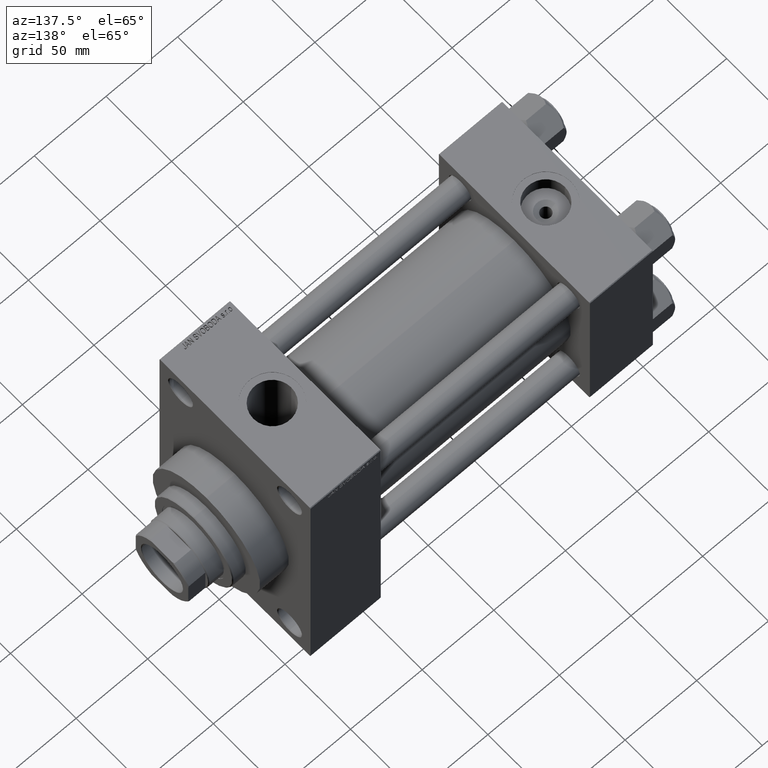
[diagram: clean part render]
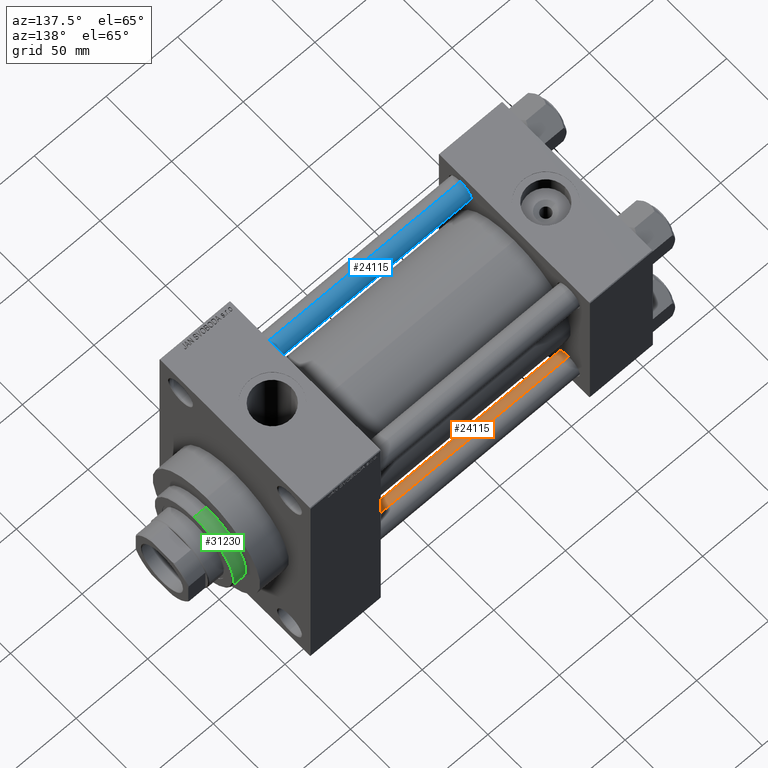
[diagram: same view with three faces highlighted in distinct colors, each labeled with its STEP entity id]
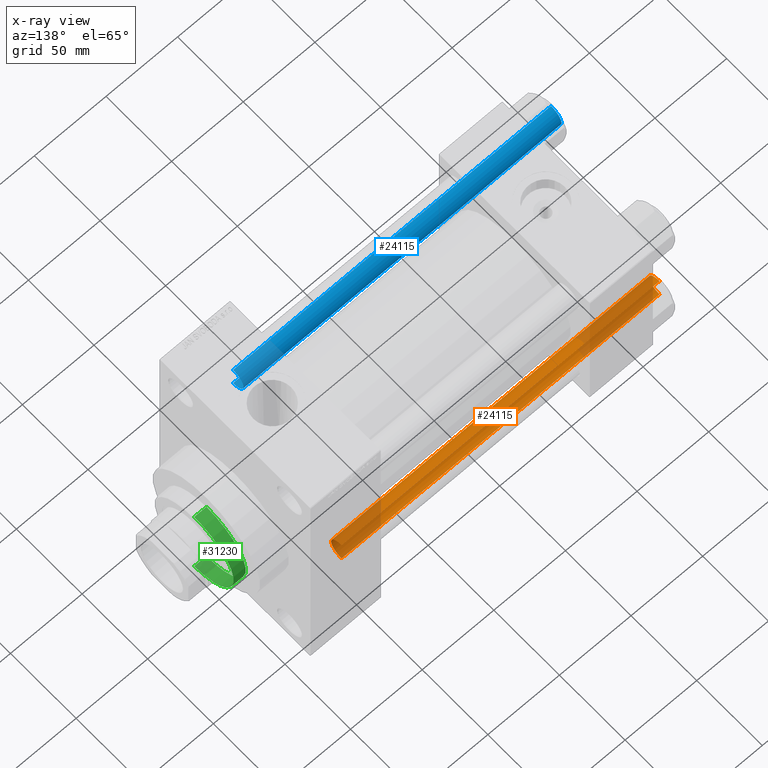
[diagram: x-ray of the same camera — body ghosted, the three highlighted faces saturated]
A machine part, auxiliary view with three faces highlighted in distinct colors.
The next image is the same camera in x-ray (body ghosted, the three faces saturated) — at least one of them is partly hidden behind the body in this view.
Their STEP definitions:

[orange] entity #24115 — the highlighted cylindrical surface (edge-blend (fillet) strip) has radius 8 mm, axis along (-1, -0, 0).
#506 = DIRECTION ( 'NONE',  ( -0.000000000000000000, -0.000000000000000000, 1.000000000000000000 ) ) ;
#1006 = VERTEX_POINT ( 'NONE', #24899 ) ;
#2166 = VECTOR ( 'NONE', #6984, 1000.000000000000000 ) ;
#2215 = DIRECTION ( 'NONE',  ( -0.000000000000000000, -0.000000000000000000, -1.000000000000000000 ) ) ;
#2368 = CIRCLE ( 'NONE', #29429, 8.000000000000000000 ) ;
#2423 = CARTESIAN_POINT ( 'NONE',  ( 8.000000000000000000, 9.797174393178823685E-16, 223.0000000000000000 ) ) ;
#3378 = AXIS2_PLACEMENT_3D ( 'NONE', #47527, #506, #7742 ) ;
#4574 = DIRECTION ( 'NONE',  ( 1.000000000000000000, 0.000000000000000000, 0.000000000000000000 ) ) ;
#6015 = EDGE_LOOP ( 'NONE', ( #27238, #21017, #19392, #26189 ) ) ;
#6984 = DIRECTION ( 'NONE',  ( -0.000000000000000000, -0.000000000000000000, -1.000000000000000000 ) ) ;
#7742 = DIRECTION ( 'NONE',  ( 1.000000000000000000, 0.000000000000000000, 0.000000000000000000 ) ) ;
#9245 = EDGE_CURVE ( 'NONE', #35743, #32979, #2368, .T. ) ;
#9464 = DIRECTION ( 'NONE',  ( -1.000000000000000000, 0.000000000000000000, 0.000000000000000000 ) ) ;
#11299 = CARTESIAN_POINT ( 'NONE',  ( -8.000000000000000000, 0.000000000000000000, 0.5000000000001669775 ) ) ;
#13441 = DIRECTION ( 'NONE',  ( -0.000000000000000000, -0.000000000000000000, -1.000000000000000000 ) ) ;
#13759 = LINE ( 'NONE', #2423, #2166 ) ;
#16799 = LINE ( 'NONE', #42586, #22802 ) ;
#19392 = ORIENTED_EDGE ( 'NONE', *, *, #19575, .T. ) ;
#19575 = EDGE_CURVE ( 'NONE', #32979, #46527, #16799, .T. ) ;
#21017 = ORIENTED_EDGE ( 'NONE', *, *, #9245, .T. ) ;
#22802 = VECTOR ( 'NONE', #13441, 1000.000000000000000 ) ;
#22893 = CARTESIAN_POINT ( 'NONE',  ( 0.000000000000000000, 0.000000000000000000, 222.5000000000001137 ) ) ;
#24115 = ADVANCED_FACE ( 'NONE', ( #38863 ), #31638, .T. ) ;
#24171 = CIRCLE ( 'NONE', #3378, 8.000000000000000000 ) ;
#24899 = CARTESIAN_POINT ( 'NONE',  ( 8.000000000000000000, 9.797174393178823685E-16, 0.5000000000001669775 ) ) ;
#26189 = ORIENTED_EDGE ( 'NONE', *, *, #30511, .T. ) ;
#27202 = EDGE_CURVE ( 'NONE', #35743, #1006, #13759, .T. ) ;
#27238 = ORIENTED_EDGE ( 'NONE', *, *, #27202, .F. ) ;
#29429 = AXIS2_PLACEMENT_3D ( 'NONE', #22893, #34456, #4574 ) ;
#30511 = EDGE_CURVE ( 'NONE', #46527, #1006, #24171, .T. ) ;
#30550 = AXIS2_PLACEMENT_3D ( 'NONE', #38138, #2215, #9464 ) ;
#31638 = CYLINDRICAL_SURFACE ( 'NONE', #30550, 8.000000000000000000 ) ;
#32979 = VERTEX_POINT ( 'NONE', #47540 ) ;
#34456 = DIRECTION ( 'NONE',  ( 0.000000000000000000, 0.000000000000000000, -1.000000000000000000 ) ) ;
#35743 = VERTEX_POINT ( 'NONE', #42439 ) ;
#38138 = CARTESIAN_POINT ( 'NONE',  ( 0.000000000000000000, 0.000000000000000000, 223.0000000000000000 ) ) ;
#38863 = FACE_OUTER_BOUND ( 'NONE', #6015, .T. ) ;
#42439 = CARTESIAN_POINT ( 'NONE',  ( 8.000000000000000000, 9.797174393178823685E-16, 222.5000000000001137 ) ) ;
#42586 = CARTESIAN_POINT ( 'NONE',  ( -8.000000000000000000, 0.000000000000000000, 223.0000000000000000 ) ) ;
#46527 = VERTEX_POINT ( 'NONE', #11299 ) ;
#47527 = CARTESIAN_POINT ( 'NONE',  ( 0.000000000000000000, 0.000000000000000000, 0.5000000000001669775 ) ) ;
#47540 = CARTESIAN_POINT ( 'NONE',  ( -8.000000000000000000, 0.000000000000000000, 222.5000000000001137 ) ) ;

[blue] entity #24115 — the highlighted cylindrical surface (edge-blend (fillet) strip) has radius 8 mm, axis along (-1, 0, -0).
#506 = DIRECTION ( 'NONE',  ( -0.000000000000000000, -0.000000000000000000, 1.000000000000000000 ) ) ;
#1006 = VERTEX_POINT ( 'NONE', #24899 ) ;
#2166 = VECTOR ( 'NONE', #6984, 1000.000000000000000 ) ;
#2215 = DIRECTION ( 'NONE',  ( -0.000000000000000000, -0.000000000000000000, -1.000000000000000000 ) ) ;
#2368 = CIRCLE ( 'NONE', #29429, 8.000000000000000000 ) ;
#2423 = CARTESIAN_POINT ( 'NONE',  ( 8.000000000000000000, 9.797174393178823685E-16, 223.0000000000000000 ) ) ;
#3378 = AXIS2_PLACEMENT_3D ( 'NONE', #47527, #506, #7742 ) ;
#4574 = DIRECTION ( 'NONE',  ( 1.000000000000000000, 0.000000000000000000, 0.000000000000000000 ) ) ;
#6015 = EDGE_LOOP ( 'NONE', ( #27238, #21017, #19392, #26189 ) ) ;
#6984 = DIRECTION ( 'NONE',  ( -0.000000000000000000, -0.000000000000000000, -1.000000000000000000 ) ) ;
#7742 = DIRECTION ( 'NONE',  ( 1.000000000000000000, 0.000000000000000000, 0.000000000000000000 ) ) ;
#9245 = EDGE_CURVE ( 'NONE', #35743, #32979, #2368, .T. ) ;
#9464 = DIRECTION ( 'NONE',  ( -1.000000000000000000, 0.000000000000000000, 0.000000000000000000 ) ) ;
#11299 = CARTESIAN_POINT ( 'NONE',  ( -8.000000000000000000, 0.000000000000000000, 0.5000000000001669775 ) ) ;
#13441 = DIRECTION ( 'NONE',  ( -0.000000000000000000, -0.000000000000000000, -1.000000000000000000 ) ) ;
#13759 = LINE ( 'NONE', #2423, #2166 ) ;
#16799 = LINE ( 'NONE', #42586, #22802 ) ;
#19392 = ORIENTED_EDGE ( 'NONE', *, *, #19575, .T. ) ;
#19575 = EDGE_CURVE ( 'NONE', #32979, #46527, #16799, .T. ) ;
#21017 = ORIENTED_EDGE ( 'NONE', *, *, #9245, .T. ) ;
#22802 = VECTOR ( 'NONE', #13441, 1000.000000000000000 ) ;
#22893 = CARTESIAN_POINT ( 'NONE',  ( 0.000000000000000000, 0.000000000000000000, 222.5000000000001137 ) ) ;
#24115 = ADVANCED_FACE ( 'NONE', ( #38863 ), #31638, .T. ) ;
#24171 = CIRCLE ( 'NONE', #3378, 8.000000000000000000 ) ;
#24899 = CARTESIAN_POINT ( 'NONE',  ( 8.000000000000000000, 9.797174393178823685E-16, 0.5000000000001669775 ) ) ;
#26189 = ORIENTED_EDGE ( 'NONE', *, *, #30511, .T. ) ;
#27202 = EDGE_CURVE ( 'NONE', #35743, #1006, #13759, .T. ) ;
#27238 = ORIENTED_EDGE ( 'NONE', *, *, #27202, .F. ) ;
#29429 = AXIS2_PLACEMENT_3D ( 'NONE', #22893, #34456, #4574 ) ;
#30511 = EDGE_CURVE ( 'NONE', #46527, #1006, #24171, .T. ) ;
#30550 = AXIS2_PLACEMENT_3D ( 'NONE', #38138, #2215, #9464 ) ;
#31638 = CYLINDRICAL_SURFACE ( 'NONE', #30550, 8.000000000000000000 ) ;
#32979 = VERTEX_POINT ( 'NONE', #47540 ) ;
#34456 = DIRECTION ( 'NONE',  ( 0.000000000000000000, 0.000000000000000000, -1.000000000000000000 ) ) ;
#35743 = VERTEX_POINT ( 'NONE', #42439 ) ;
#38138 = CARTESIAN_POINT ( 'NONE',  ( 0.000000000000000000, 0.000000000000000000, 223.0000000000000000 ) ) ;
#38863 = FACE_OUTER_BOUND ( 'NONE', #6015, .T. ) ;
#42439 = CARTESIAN_POINT ( 'NONE',  ( 8.000000000000000000, 9.797174393178823685E-16, 222.5000000000001137 ) ) ;
#42586 = CARTESIAN_POINT ( 'NONE',  ( -8.000000000000000000, 0.000000000000000000, 223.0000000000000000 ) ) ;
#46527 = VERTEX_POINT ( 'NONE', #11299 ) ;
#47527 = CARTESIAN_POINT ( 'NONE',  ( 0.000000000000000000, 0.000000000000000000, 0.5000000000001669775 ) ) ;
#47540 = CARTESIAN_POINT ( 'NONE',  ( -8.000000000000000000, 0.000000000000000000, 222.5000000000001137 ) ) ;

[green] entity #31230 — the highlighted cylindrical surface (partial cylindrical patch) has radius 30 mm, axis along (-1, -0, 0).
#314 = AXIS2_PLACEMENT_3D ( 'NONE', #12197, #40872, #41343 ) ;
#715 = ORIENTED_EDGE ( 'NONE', *, *, #13715, .T. ) ;
#812 = EDGE_CURVE ( 'NONE', #1581, #43645, #17709, .T. ) ;
#1581 = VERTEX_POINT ( 'NONE', #7901 ) ;
#4511 = EDGE_CURVE ( 'NONE', #1581, #12529, #40820, .T. ) ;
#4833 = DIRECTION ( 'NONE',  ( 0.000000000000000000, 0.000000000000000000, -1.000000000000000000 ) ) ;
#6483 = DIRECTION ( 'NONE',  ( 0.000000000000000000, 0.000000000000000000, 1.000000000000000000 ) ) ;
#7901 = CARTESIAN_POINT ( 'NONE',  ( -30.00000000000000000, 0.000000000000000000, 51.75999999999999091 ) ) ;
#7903 = ORIENTED_EDGE ( 'NONE', *, *, #812, .F. ) ;
#8194 = CARTESIAN_POINT ( 'NONE',  ( 0.000000000000000000, 0.000000000000000000, 51.75999999999999091 ) ) ;
#10344 = CARTESIAN_POINT ( 'NONE',  ( 0.000000000000000000, 0.000000000000000000, 43.25999999999999801 ) ) ;
#10479 = VECTOR ( 'NONE', #28362, 1000.000000000000000 ) ;
#11721 = FACE_OUTER_BOUND ( 'NONE', #44903, .T. ) ;
#11757 = AXIS2_PLACEMENT_3D ( 'NONE', #10344, #6483, #14202 ) ;
#12197 = CARTESIAN_POINT ( 'NONE',  ( 0.000000000000000000, 0.000000000000000000, 52.25999999999999801 ) ) ;
#12529 = VERTEX_POINT ( 'NONE', #17908 ) ;
#13715 = EDGE_CURVE ( 'NONE', #44784, #43645, #19426, .T. ) ;
#14202 = DIRECTION ( 'NONE',  ( 1.000000000000000000, 0.000000000000000000, 0.000000000000000000 ) ) ;
#17437 = CARTESIAN_POINT ( 'NONE',  ( -30.00000000000000000, 0.000000000000000000, 43.25999999999999801 ) ) ;
#17709 = LINE ( 'NONE', #24953, #28399 ) ;
#17908 = CARTESIAN_POINT ( 'NONE',  ( 30.00000000000000000, 3.673940397442059178E-15, 51.75999999999999091 ) ) ;
#18769 = EDGE_CURVE ( 'NONE', #12529, #44784, #36293, .T. ) ;
#19426 = CIRCLE ( 'NONE', #11757, 30.00000000000000000 ) ;
#19428 = CYLINDRICAL_SURFACE ( 'NONE', #314, 30.00000000000000000 ) ;
#21981 = ORIENTED_EDGE ( 'NONE', *, *, #4511, .T. ) ;
#24865 = CARTESIAN_POINT ( 'NONE',  ( 30.00000000000000000, 3.673940397442059178E-15, 43.25999999999999801 ) ) ;
#24953 = CARTESIAN_POINT ( 'NONE',  ( -30.00000000000000000, 0.000000000000000000, 52.25999999999999801 ) ) ;
#28362 = DIRECTION ( 'NONE',  ( -0.000000000000000000, -0.000000000000000000, -1.000000000000000000 ) ) ;
#28399 = VECTOR ( 'NONE', #35553, 1000.000000000000000 ) ;
#28480 = ORIENTED_EDGE ( 'NONE', *, *, #18769, .T. ) ;
#31230 = ADVANCED_FACE ( 'NONE', ( #11721 ), #19428, .T. ) ;
#35553 = DIRECTION ( 'NONE',  ( -0.000000000000000000, -0.000000000000000000, -1.000000000000000000 ) ) ;
#36293 = LINE ( 'NONE', #43514, #10479 ) ;
#37848 = DIRECTION ( 'NONE',  ( 1.000000000000000000, 0.000000000000000000, 0.000000000000000000 ) ) ;
#40820 = CIRCLE ( 'NONE', #45434, 30.00000000000000000 ) ;
#40872 = DIRECTION ( 'NONE',  ( -0.000000000000000000, -0.000000000000000000, -1.000000000000000000 ) ) ;
#41343 = DIRECTION ( 'NONE',  ( -1.000000000000000000, 0.000000000000000000, 0.000000000000000000 ) ) ;
#43514 = CARTESIAN_POINT ( 'NONE',  ( 30.00000000000000000, 3.673940397442059178E-15, 52.25999999999999801 ) ) ;
#43645 = VERTEX_POINT ( 'NONE', #17437 ) ;
#44784 = VERTEX_POINT ( 'NONE', #24865 ) ;
#44903 = EDGE_LOOP ( 'NONE', ( #21981, #28480, #715, #7903 ) ) ;
#45434 = AXIS2_PLACEMENT_3D ( 'NONE', #8194, #4833, #37848 ) ;